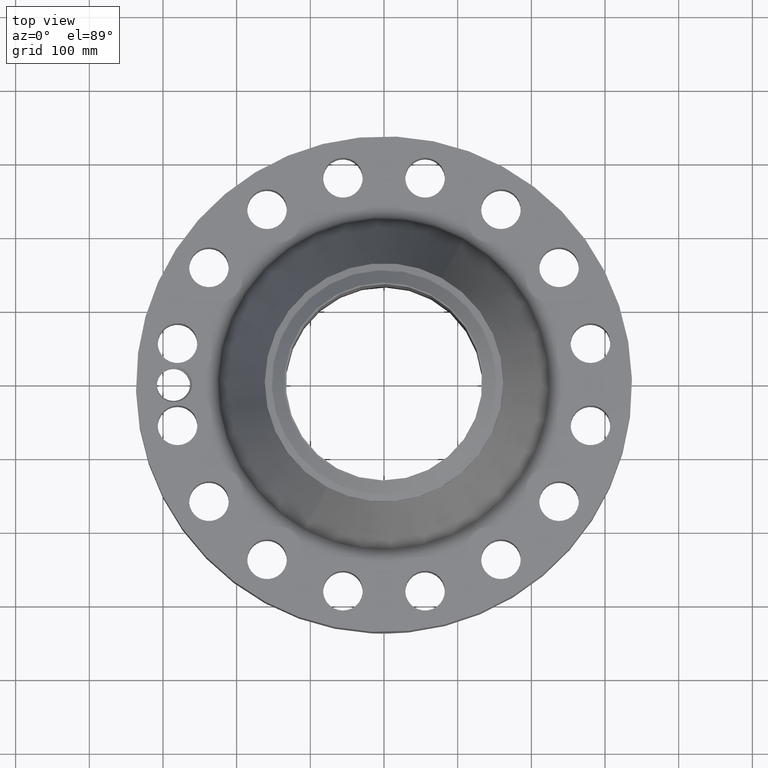
[diagram: clean part render]
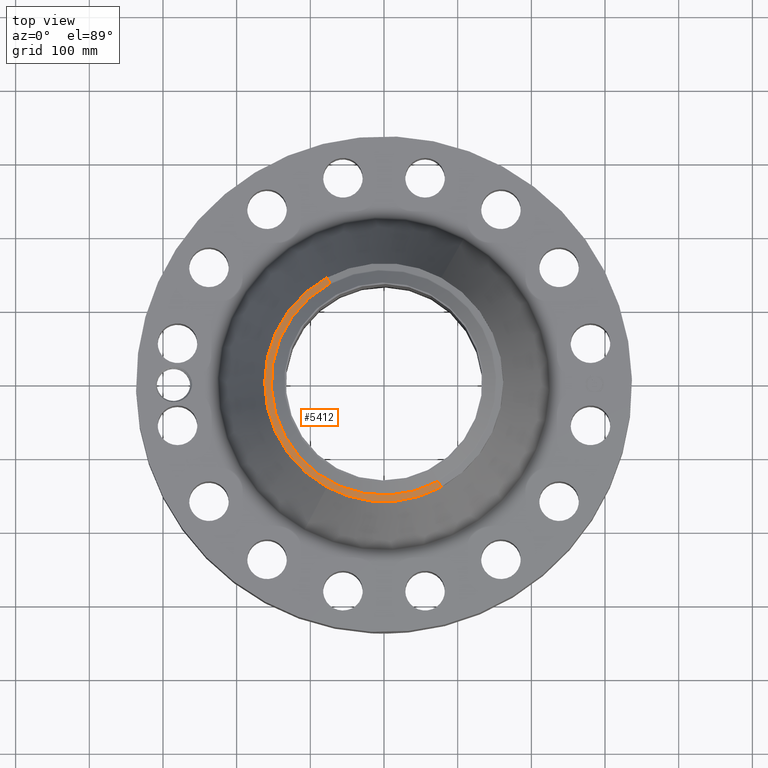
[diagram: same view with one face highlighted and labeled with its STEP entity id]
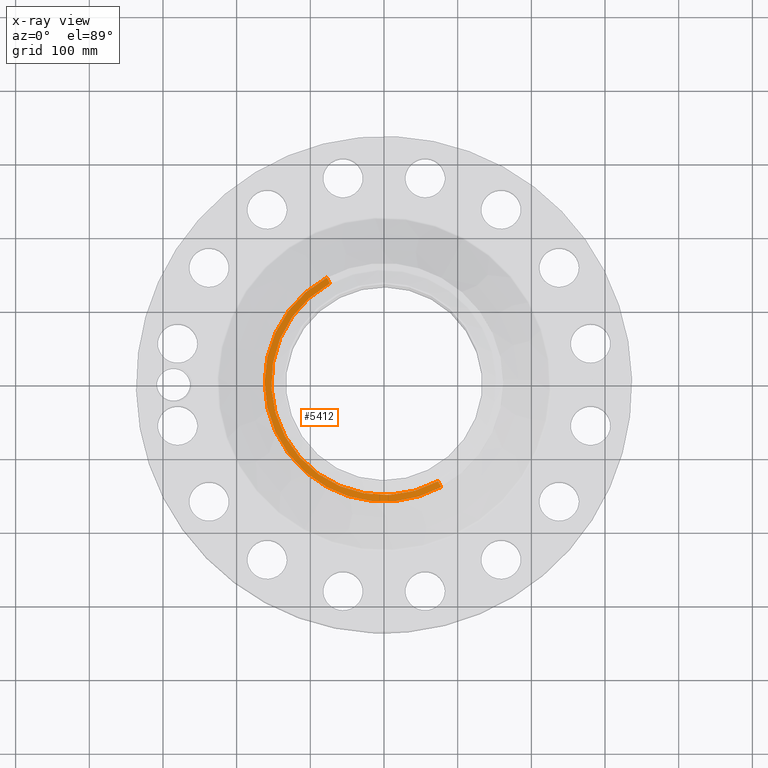
[diagram: x-ray of the same camera — body ghosted, the highlighted face saturated]
A machine part, top view. The second image highlights one B-rep face of the part: STEP entity #5412.
The next image is the same camera in x-ray: the body ghosted, the highlighted face saturated — about 0% of this face is hidden behind the body in this view.
In plain terms, the highlighted conical surface has half-angle 80 deg.
Its self-contained STEP definition (entity closure, byte-faithful):
#3931=AXIS2_PLACEMENT_3D('Circle Axis2P3D',#3929,#3930,$) ;
#3944=AXIS2_PLACEMENT_3D('Circle Axis2P3D',#3942,#3943,$) ;
#4744=AXIS2_PLACEMENT_3D('Circle Axis2P3D',#4742,#4743,$) ;
#5385=AXIS2_PLACEMENT_3D('Cone Axis2P3D',#5382,#5383,#5384) ;
#3912=CARTESIAN_POINT('Vertex',(-3.05633780861,-5.59458883207,10.789964975)) ;
#3926=CARTESIAN_POINT('Vertex',(3.05633780861,-5.59458883207,10.789964975)) ;
#3929=CARTESIAN_POINT('Axis2P3D Location',(0.,0.,10.789964975)) ;
#3942=CARTESIAN_POINT('Axis2P3D Location',(0.,0.,10.789964975)) ;
#3946=CARTESIAN_POINT('Vertex',(-3.05633780861,5.59458883207,10.789964975)) ;
#4739=CARTESIAN_POINT('Vertex',(-2.88925504073,5.28874587695,10.8514160193)) ;
#4742=CARTESIAN_POINT('Axis2P3D Location',(0.,0.,10.8514160193)) ;
#4746=CARTESIAN_POINT('Vertex',(2.88925504073,-5.28874587695,10.8514160193)) ;
#5382=CARTESIAN_POINT('Axis2P3D Location',(0.,0.,10.8514160193)) ;
#5387=CARTESIAN_POINT('Line Origine',(-2.97279642467,5.44166735451,10.8206904971)) ;
#5392=CARTESIAN_POINT('Line Origine',(2.97279642467,-5.44166735451,10.8206904971)) ;
#3930=DIRECTION('Axis2P3D Direction',(0.,0.,-0.0393700787402)) ;
#3943=DIRECTION('Axis2P3D Direction',(0.,0.,-0.0393700787402)) ;
#4743=DIRECTION('Axis2P3D Direction',(0.,0.,0.0393700787402)) ;
#5383=DIRECTION('Axis2P3D Direction',(-0.,-0.,-0.0393700787402)) ;
#5384=DIRECTION('Axis2P3D XDirection',(0.0188750212049,-0.0345504945626,0.)) ;
#5388=DIRECTION('Vector Direction',(-0.0185882672208,0.0340255949157,-0.00683654242783)) ;
#5393=DIRECTION('Vector Direction',(0.0185882672208,-0.0340255949157,-0.00683654242783)) ;
#5389=VECTOR('Line Direction',#5388,0.0393700787402) ;
#5394=VECTOR('Line Direction',#5393,0.0393700787402) ;
#5406=ORIENTED_EDGE('',*,*,#5396,.F.) ;
#5407=ORIENTED_EDGE('',*,*,#4748,.F.) ;
#5408=ORIENTED_EDGE('',*,*,#5391,.T.) ;
#5409=ORIENTED_EDGE('',*,*,#3948,.T.) ;
#5410=ORIENTED_EDGE('',*,*,#3933,.F.) ;
#5412=ADVANCED_FACE('PartBody',(#5411),#5386,.T.) ;
#3932=CIRCLE('generated circle',#3931,6.37500000003) ;
#3945=CIRCLE('generated circle',#3944,6.37500000003) ;
#4745=CIRCLE('generated circle',#4744,6.02649380995) ;
#5386=CONICAL_SURFACE('Cone',#5385,6.02649380995,1.3962634016) ;
#3933=EDGE_CURVE('',#3927,#3913,#3932,.T.) ;
#3948=EDGE_CURVE('',#3947,#3913,#3945,.F.) ;
#4748=EDGE_CURVE('',#4740,#4747,#4745,.T.) ;
#5391=EDGE_CURVE('',#4740,#3947,#5390,.T.) ;
#5396=EDGE_CURVE('',#4747,#3927,#5395,.T.) ;
#5405=EDGE_LOOP('',(#5406,#5407,#5408,#5409,#5410)) ;
#5411=FACE_OUTER_BOUND('',#5405,.T.) ;
#5390=LINE('Line',#5387,#5389) ;
#5395=LINE('Line',#5392,#5394) ;
#3913=VERTEX_POINT('',#3912) ;
#3927=VERTEX_POINT('',#3926) ;
#3947=VERTEX_POINT('',#3946) ;
#4740=VERTEX_POINT('',#4739) ;
#4747=VERTEX_POINT('',#4746) ;